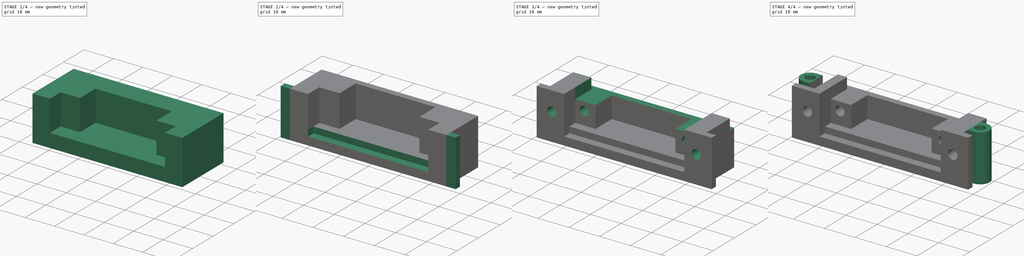
[diagram: build sequence overview — one tinted view per stage of 4, left to right]
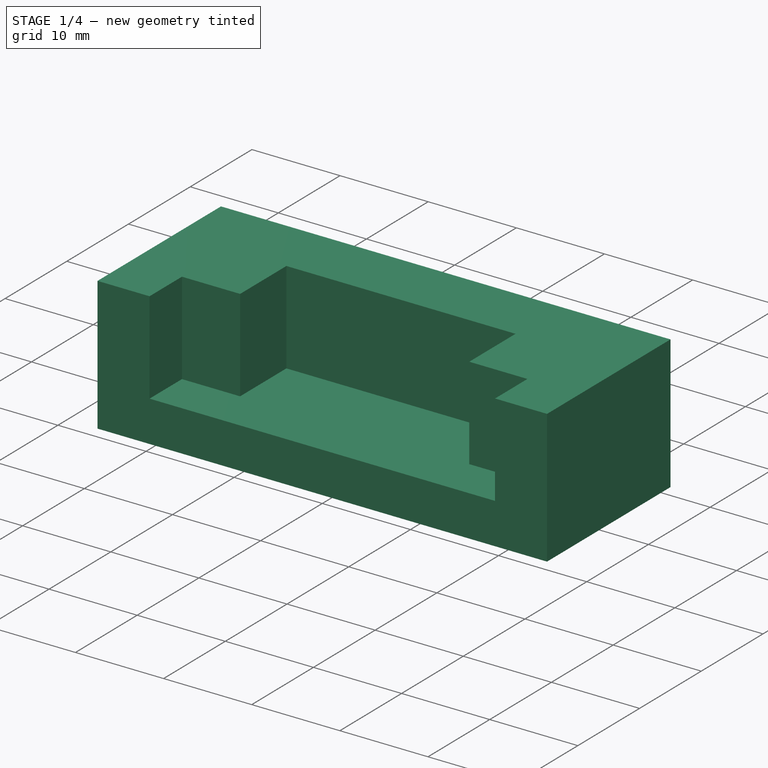
[diagram: stage 1 of 4 — iso view after this stage's code; geometry added in this stage tinted green]
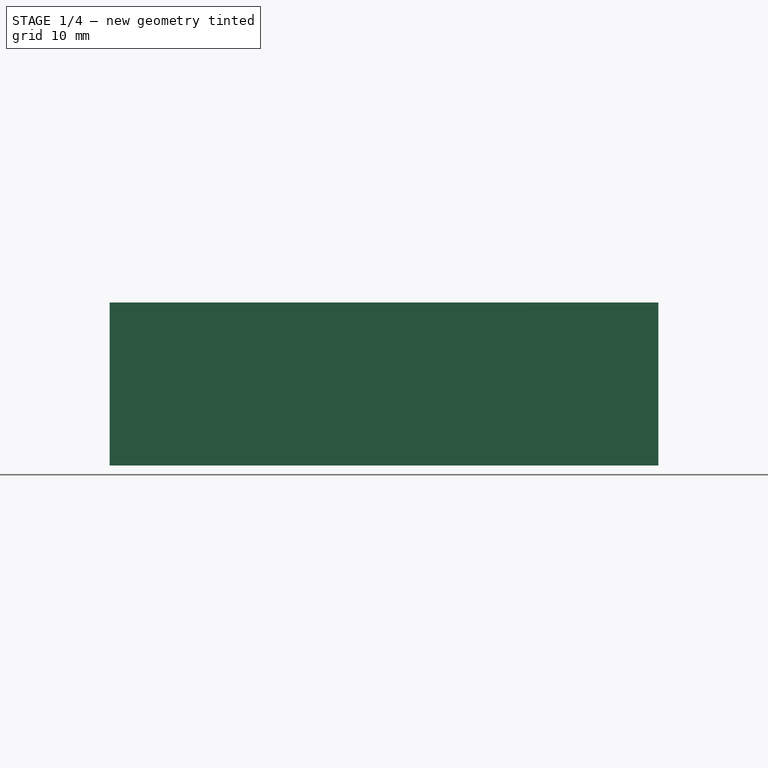
[diagram: stage 1 of 4 — front view after this stage's code; geometry added in this stage tinted green]
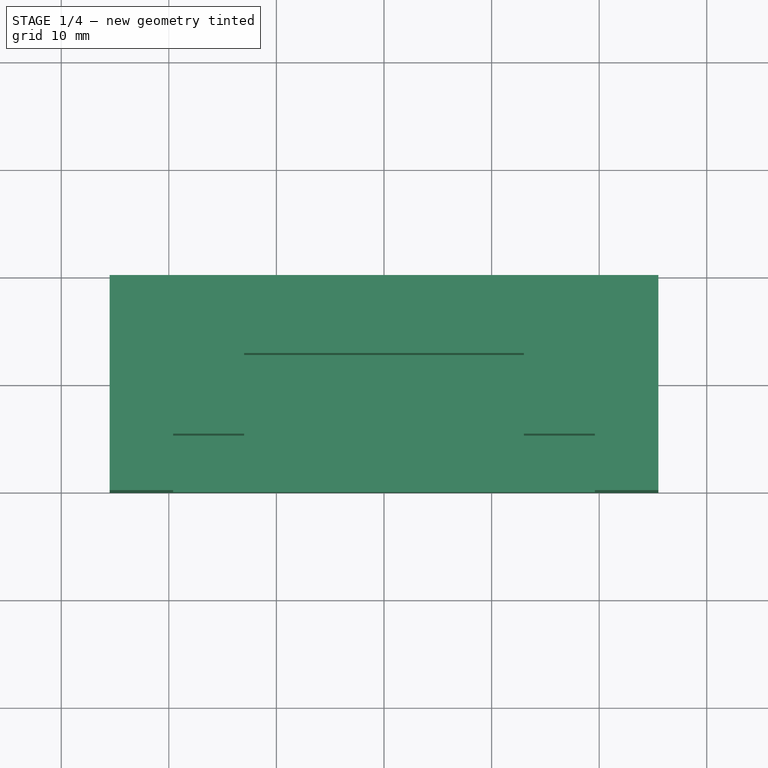
[diagram: stage 1 of 4 — top view after this stage's code; geometry added in this stage tinted green]
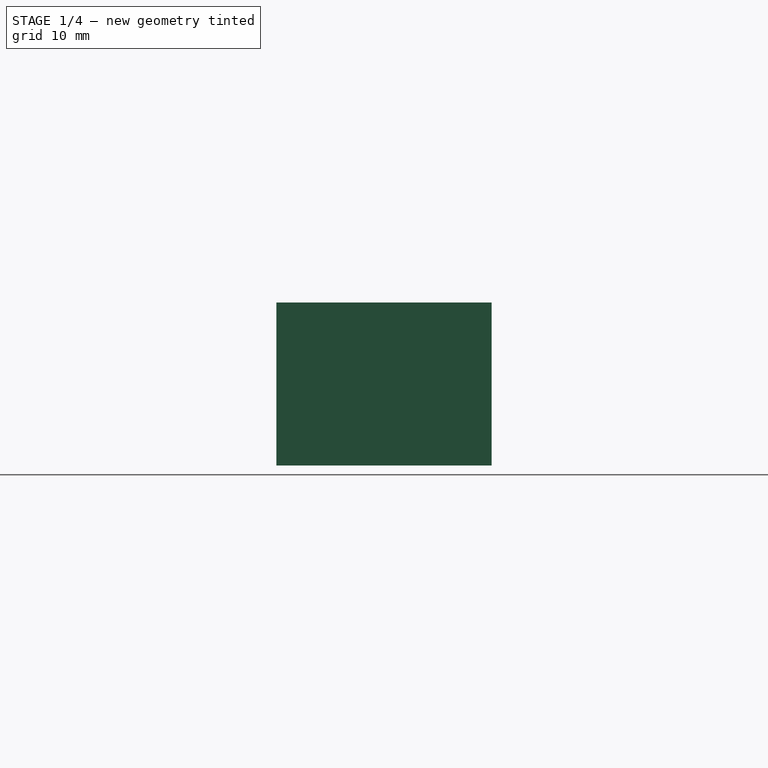
[diagram: stage 1 of 4 — right view after this stage's code; geometry added in this stage tinted green]
FCSTD DOCUMENT  (FreeCAD 0.21R33771 (Git))
Label: colorswitch-braket
License: All rights reserved
LicenseURL: http://en.wikipedia.org/wiki/All_rights_reserved
objects: Sketcher::SketchObject×10, PartDesign::Pocket×7, PartDesign::Pad×3, PartDesign::Body×2
note: 32 computed .brp shape members not serialized (recipe doc carries the construction recipe); baked Part::Feature solids carry a one-line shape summary decoded from their .brp

FEATURE [Sketcher::SketchObject] Sketch
  FullyConstrained = true
  MapMode = 5
  Support = -> [XY_Plane]
  sketch-geometry (4):
    g0: LineSegment StartX=-25.5 StartY=10 StartZ=0 EndX=25.5 EndY=10 EndZ=0
    g1: LineSegment StartX=25.5 StartY=10 StartZ=0 EndX=25.5 EndY=-10 EndZ=0
    g2: LineSegment StartX=25.5 StartY=-10 StartZ=0 EndX=-25.5 EndY=-10 EndZ=0
    g3: LineSegment StartX=-25.5 StartY=-10 StartZ=0 EndX=-25.5 EndY=10 EndZ=0
  constraints (11):
    c: Coincident(g0,g1)
    c: Coincident(g1,g2)
    c: Coincident(g2,g3)
    c: Coincident(g3,g0)
    c: Horizontal(g0)
    c: Horizontal(g2)
    c: Vertical(g1)
    c: Vertical(g3)
    c: Symmetric(g1,g0,g-1)
    c: DistanceX(g2,g2) = 51
    c: DistanceY(g3,g3) = 20
FEATURE [PartDesign::Pad] Pad
  Direction = (0,0,1)
  Length = 15.15
  Length2 = 10
  Profile = -> Sketch
  ReferenceAxis = -> Sketch [N_Axis]
  Type = 0
FEATURE [Sketcher::SketchObject] Sketch001
  ExternalGeometry = -> [Pad]
  FullyConstrained = true
  MapMode = 5
  Placement = pos=(0,0,15.15) rot=(0,0,1;0rad)
  Support = -> [Pad]
  sketch-geometry (8):
    g0: LineSegment StartX=-19.6 StartY=-10 StartZ=0 EndX=19.6 EndY=-10 EndZ=0
    g1: LineSegment StartX=19.6 StartY=-10 StartZ=0 EndX=19.6 EndY=-4.75 EndZ=0
    g2: LineSegment StartX=-19.6 StartY=-10 StartZ=0 EndX=-19.6 EndY=-4.75 EndZ=0
    g3: LineSegment StartX=19.6 StartY=-4.75 StartZ=0 EndX=13 EndY=-4.75 EndZ=0
    g4: LineSegment StartX=-19.6 StartY=-4.75 StartZ=0 EndX=-13 EndY=-4.75 EndZ=0
    g5: LineSegment StartX=13 StartY=-4.75 StartZ=0 EndX=13 EndY=2.75 EndZ=0
    g6: LineSegment StartX=13 StartY=2.75 StartZ=0 EndX=-13 EndY=2.75 EndZ=0
    g7: LineSegment StartX=-13 StartY=2.75 StartZ=0 EndX=-13 EndY=-4.75 EndZ=0
  constraints (22):
    c: PointOnObject(g0,g-5)
    c: Symmetric(g0,g0,g-2)
    c: Coincident(g1,g0)
    c: Vertical(g1)
    c: Coincident(g2,g0)
    c: Vertical(g2)
    c: Coincident(g3,g1)
    c: Coincident(g4,g2)
    c: Horizontal(g4)
    c: Coincident(g5,g3)
    c: Vertical(g5)
    c: Coincident(g6,g5)
    c: Coincident(g7,g6)
    c: Coincident(g7,g4)
    c: Vertical(g7)
    c: Horizontal(g3)
    c: Horizontal(g3,g4)
    c: DistanceX(g0,g0) = 39.2
    c: DistanceY(g0,g6) = 12.75
    c: DistanceX(g6,g6) = 26
    c: DistanceY(g1,g5) = 7.5
    c: Symmetric(g6,g5,g-2)
FEATURE [PartDesign::Pocket] Pocket
  BaseFeature = -> Pad
  Direction = (0,0,-1)
  Length = 10.5
  Length2 = 5
  Profile = -> Sketch001
  ReferenceAxis = -> Sketch001 [N_Axis]
  Type = 0
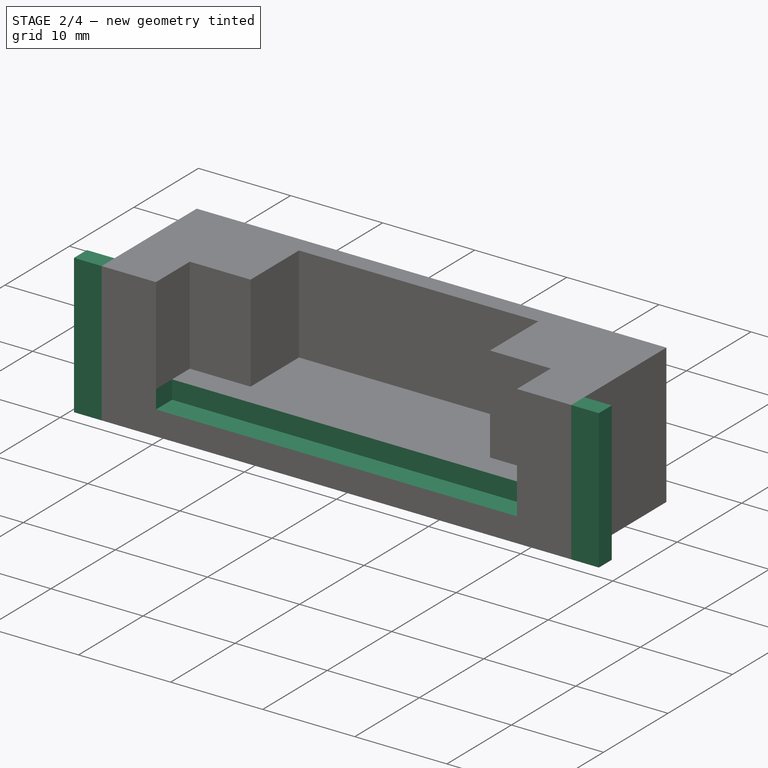
[diagram: stage 2 of 4 — iso view after this stage's code; geometry added in this stage tinted green]
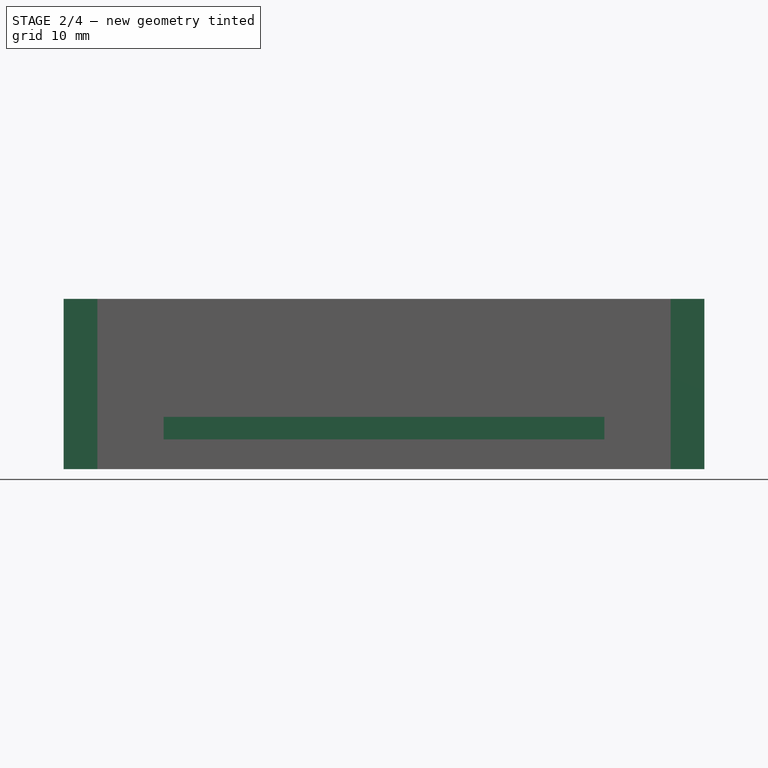
[diagram: stage 2 of 4 — front view after this stage's code; geometry added in this stage tinted green]
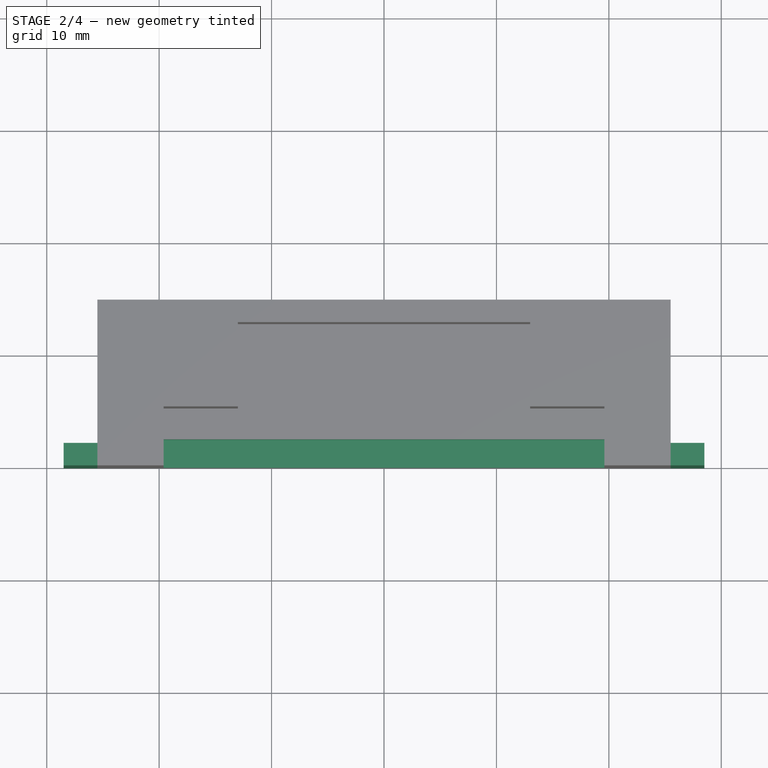
[diagram: stage 2 of 4 — top view after this stage's code; geometry added in this stage tinted green]
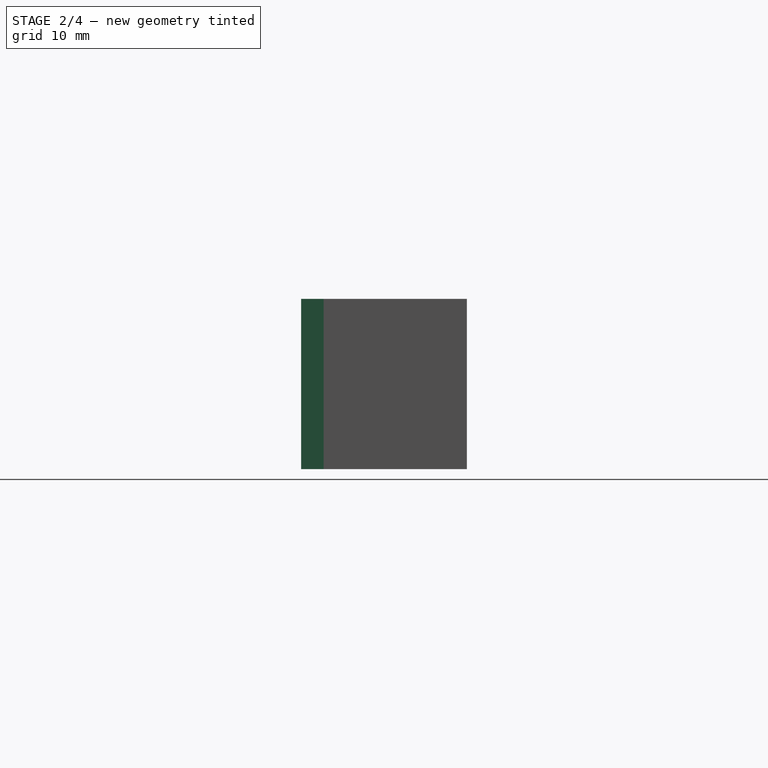
[diagram: stage 2 of 4 — right view after this stage's code; geometry added in this stage tinted green]
FEATURE [Sketcher::SketchObject] Sketch002
  ExternalGeometry = -> [Pocket]
  FullyConstrained = true
  MapMode = 5
  Placement = pos=(0,0,4.65) rot=(0,0,1;0rad)
  Support = -> [Pocket]
  sketch-geometry (4):
    g0: LineSegment StartX=-19.6 StartY=-7.5 StartZ=0 EndX=19.6 EndY=-7.5 EndZ=0
    g1: LineSegment StartX=19.6 StartY=-7.5 StartZ=0 EndX=19.6 EndY=-10 EndZ=0
    g2: LineSegment StartX=19.6 StartY=-10 StartZ=0 EndX=-19.6 EndY=-10 EndZ=0
    g3: LineSegment StartX=-19.6 StartY=-10 StartZ=0 EndX=-19.6 EndY=-7.5 EndZ=0
  constraints (11):
    c: Coincident(g0,g1)
    c: Coincident(g1,g2)
    c: Coincident(g2,g3)
    c: Coincident(g3,g0)
    c: Horizontal(g0)
    c: Horizontal(g2)
    c: Vertical(g1)
    c: Vertical(g3)
    c: PointOnObject(g0,g-3)
    c: Coincident(g1,g-4)
    c: DistanceY(g2,g0) = 2.5
FEATURE [PartDesign::Pocket] Pocket001
  BaseFeature = -> Pocket
  Direction = (0,0,-1)
  Length = 2
  Length2 = 5
  Profile = -> Sketch002
  ReferenceAxis = -> Sketch002 [N_Axis]
  Type = 0
FEATURE [PartDesign::Body] Body001
  Origin = -> Origin001
  Placement = pos=(0,0,-5.25) rot=(0,0,1;0rad)
FEATURE [Sketcher::SketchObject] Sketch011
  ExternalGeometry = -> [Pocket001]
  FullyConstrained = true
  MapMode = 5
  Placement = pos=(0,0,15.15) rot=(0,0,1;0rad)
  Support = -> [Pocket001]
  sketch-geometry (4):
    g0: LineSegment StartX=-25.5 StartY=10 StartZ=0 EndX=25.5 EndY=10 EndZ=0
    g1: LineSegment StartX=25.5 StartY=10 StartZ=0 EndX=25.5 EndY=4.75 EndZ=0
    g2: LineSegment StartX=25.5 StartY=4.75 StartZ=0 EndX=-25.5 EndY=4.75 EndZ=0
    g3: LineSegment StartX=-25.5 StartY=4.75 StartZ=0 EndX=-25.5 EndY=10 EndZ=0
  constraints (11):
    c: Coincident(g0,g1)
    c: Coincident(g1,g2)
    c: Coincident(g2,g3)
    c: Coincident(g3,g0)
    c: Horizontal(g0)
    c: Horizontal(g2)
    c: Vertical(g1)
    c: Vertical(g3)
    c: Coincident(g0,g-3)
    c: PointOnObject(g1,g-4)
    c: DistanceY(g-5,g2) = 2
FEATURE [PartDesign::Pocket] Pocket002
  BaseFeature = -> Pocket001
  Direction = (0,0,-1)
  Length = 5
  Length2 = 5
  Profile = -> Sketch011
  ReferenceAxis = -> Sketch011 [N_Axis]
  Type = 1
FEATURE [Sketcher::SketchObject] Sketch012
  ExternalGeometry = -> [Pocket002]
  FullyConstrained = false
  MapMode = 5
  Placement = pos=(0,-10,0) rot=(1,0,0;1.5708rad)
  Support = -> [Pocket002]
  sketch-geometry (12):
    g0: LineSegment StartX=-29.957 StartY=8.9 StartZ=0 EndX=29.4712 EndY=8.9 EndZ=0
    g1: Circle CenterX=-23.52 CenterY=8.9 CenterZ=0 NormalX=0 NormalY=0 NormalZ=1 AngleXU=0 Radius=1.5
    g2: Circle CenterX=23.52 CenterY=8.9 CenterZ=0 NormalX=0 NormalY=0 NormalZ=1 AngleXU=0 Radius=1.5
    g3: LineSegment StartX=-25.5 StartY=15.15 StartZ=0 EndX=-28.5 EndY=15.15 EndZ=0
    g4: LineSegment StartX=-28.5 StartY=15.15 StartZ=0 EndX=-28.5 EndY=0 EndZ=0
    g5: LineSegment StartX=-28.5 StartY=0 StartZ=0 EndX=-25.5 EndY=0 EndZ=0
    g6: LineSegment StartX=-25.5 StartY=0 StartZ=0 EndX=-25.5 EndY=15.15 EndZ=0
    g7: LineSegment StartX=25.5 StartY=0 StartZ=0 EndX=28.5 EndY=0 EndZ=0
    g8: LineSegment StartX=28.5 StartY=0 StartZ=0 EndX=28.5 EndY=15.15 EndZ=0
    g9: LineSegment StartX=28.5 StartY=15.15 StartZ=0 EndX=25.5 EndY=15.15 EndZ=0
    g10: LineSegment StartX=25.5 StartY=15.15 StartZ=0 EndX=25.5 EndY=0 EndZ=0
    g11: LineSegment StartX=-23.52 StartY=20.6079 StartZ=0 EndX=-23.52 EndY=-4.04788 EndZ=0
  constraints (28):
    c: Symmetric(g-4,g-3,g0)
    c: PointOnObject(g1,g0)
    c: Symmetric(g2,g1,g-2)
    c: DistanceX(g1,g2) = 47.04
    c: Diameter(g1) = 3
    c: Equal(g2,g1)
    c: Coincident(g3,g4)
    c: Coincident(g4,g5)
    c: Coincident(g5,g6)
    c: Coincident(g6,g3)
    c: Horizontal(g3)
    c: Horizontal(g5)
    c: Vertical(g4)
    c: Coincident(g3,g-5)
    c: Coincident(g7,g8)
    c: Coincident(g8,g9)
    c: Coincident(g9,g10)
    c: Coincident(g10,g7)
    c: Horizontal(g7)
    c: Horizontal(g9)
    c: Vertical(g8)
    c: Vertical(g10)
    c: Coincident(g7,g-6)
    c: Horizontal(g4,g7)
    c: Symmetric(g3,g8,g-2)
    c: PointOnObject(g1,g11)
    c: Vertical(g6)
    c: DistanceX(g3,g3) = 3
FEATURE [PartDesign::Pad] Pad005
  BaseFeature = -> Pocket002
  Direction = (0,-1,2e-16)
  Length = 2
  Length2 = 10
  Profile = -> Sketch012
  ReferenceAxis = -> Sketch012 [N_Axis]
  Reversed = true
  Type = 0
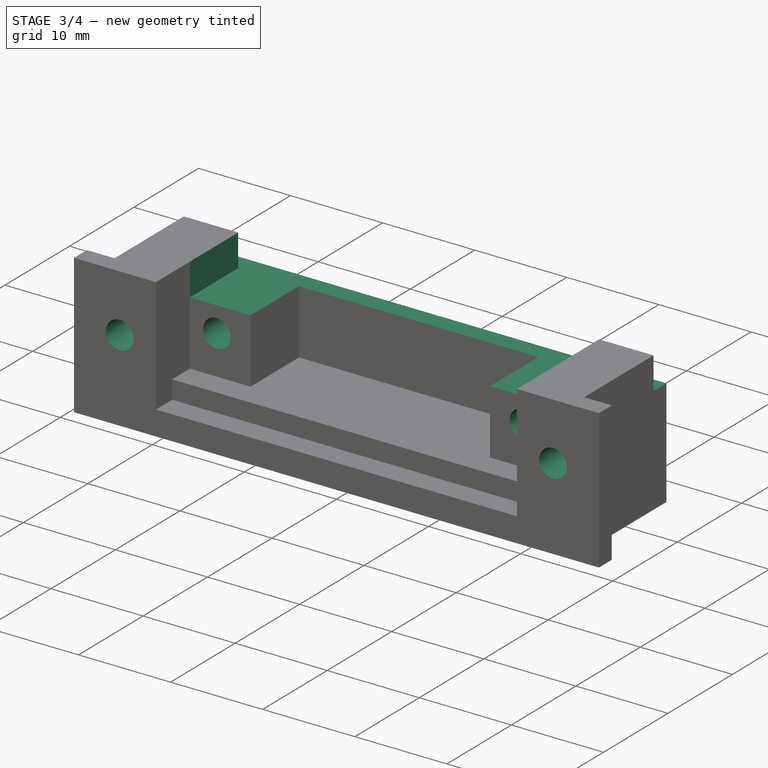
[diagram: stage 3 of 4 — iso view after this stage's code; geometry added in this stage tinted green]
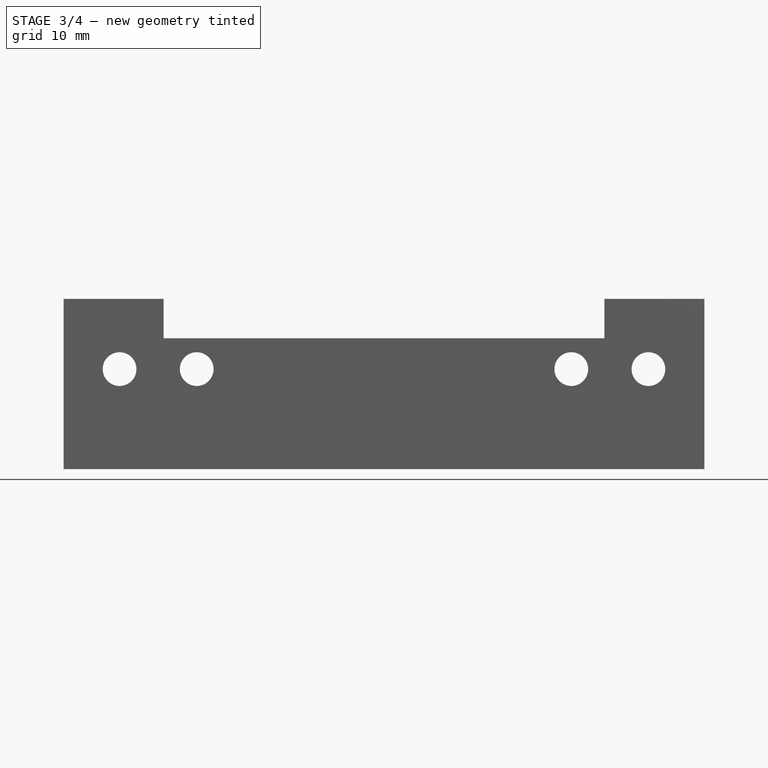
[diagram: stage 3 of 4 — front view after this stage's code; geometry added in this stage tinted green]
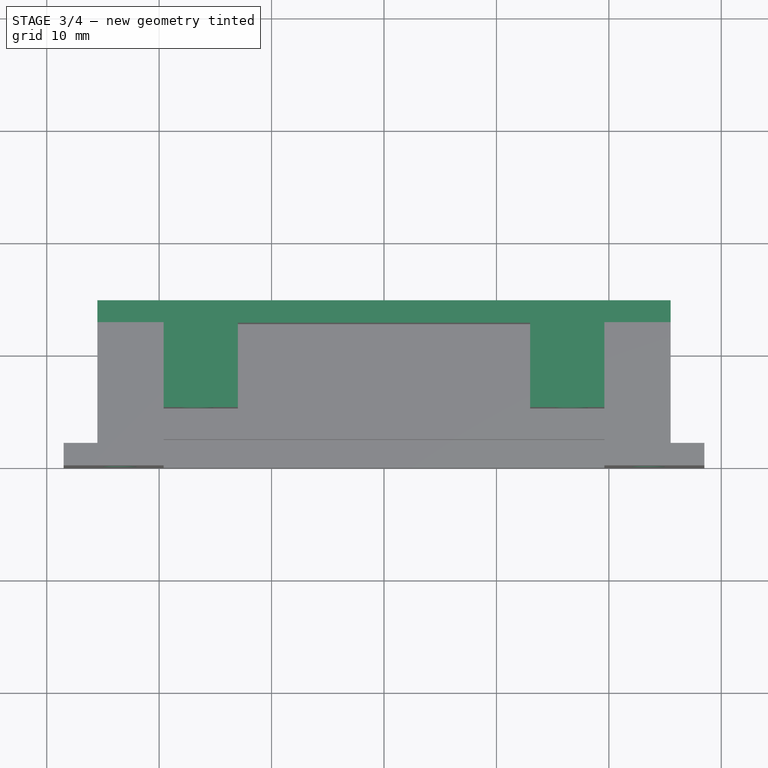
[diagram: stage 3 of 4 — top view after this stage's code; geometry added in this stage tinted green]
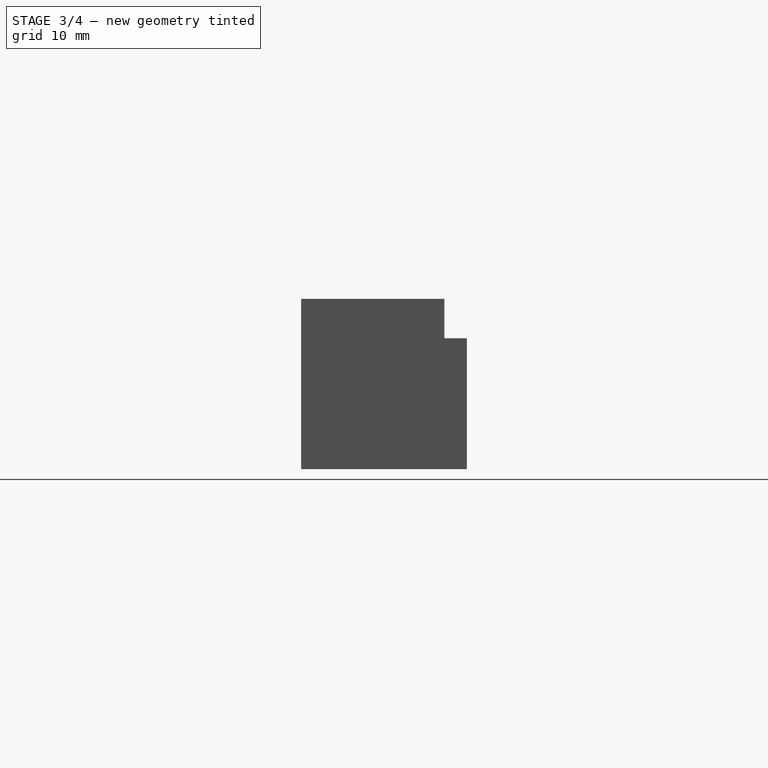
[diagram: stage 3 of 4 — right view after this stage's code; geometry added in this stage tinted green]
FEATURE [Sketcher::SketchObject] Sketch013
  ExternalGeometry = -> [Pad005]
  FullyConstrained = false
  MapMode = 5
  Placement = pos=(0,-10,0) rot=(1,0,0;1.5708rad)
  Support = -> [Pad005]
  sketch-geometry (5):
    g0: LineSegment StartX=-35.0547 StartY=8.9 StartZ=0 EndX=33.1925 EndY=8.9 EndZ=0
    g1: Circle CenterX=-23.52 CenterY=8.9 CenterZ=0 NormalX=0 NormalY=0 NormalZ=1 AngleXU=0 Radius=1.5
    g2: Circle CenterX=-16.66 CenterY=8.9 CenterZ=0 NormalX=0 NormalY=0 NormalZ=1 AngleXU=0 Radius=1.5
    g3: Circle CenterX=16.66 CenterY=8.9 CenterZ=0 NormalX=0 NormalY=0 NormalZ=1 AngleXU=0 Radius=1.5
    g4: Circle CenterX=23.52 CenterY=8.9 CenterZ=0 NormalX=0 NormalY=0 NormalZ=1 AngleXU=0 Radius=1.5
  constraints (11):
    c: PointOnObject(g1,g0)
    c: PointOnObject(g2,g0)
    c: Symmetric(g2,g3,g-2)
    c: DistanceX(g2,g3) = 33.32
    c: Symmetric(g1,g4,g-2)
    c: DistanceX(g1,g4) = 47.04
    c: Equal(g1,g4)
    c: Diameter(g1) = 3
    c: Equal(g2,g3)
    c: Diameter(g2) = 3
    c: Symmetric(g-5,g-6,g0)
FEATURE [PartDesign::Pocket] Pocket003
  BaseFeature = -> Pad005
  Direction = (0,1,-2e-16)
  Length = 5
  Length2 = 5
  Profile = -> Sketch013
  ReferenceAxis = -> Sketch013 [N_Axis]
  Type = 1
FEATURE [Sketcher::SketchObject] Sketch014
  ExternalGeometry = -> [Pocket003]
  FullyConstrained = true
  MapMode = 5
  Placement = pos=(0,-4.75,0) rot=(1,0,0;1.5708rad)
  Support = -> [Pocket003]
  sketch-geometry (4):
    g0: LineSegment StartX=19.6 StartY=11.65 StartZ=0 EndX=-19.6 EndY=11.65 EndZ=0
    g1: LineSegment StartX=-19.6 StartY=11.65 StartZ=0 EndX=-19.6 EndY=15.15 EndZ=0
    g2: LineSegment StartX=-19.6 StartY=15.15 StartZ=0 EndX=19.6 EndY=15.15 EndZ=0
    g3: LineSegment StartX=19.6 StartY=15.15 StartZ=0 EndX=19.6 EndY=11.65 EndZ=0
  constraints (11):
    c: Coincident(g0,g1)
    c: Coincident(g1,g2)
    c: Coincident(g2,g3)
    c: Coincident(g3,g0)
    c: Horizontal(g0)
    c: Horizontal(g2)
    c: Vertical(g1)
    c: Vertical(g3)
    c: PointOnObject(g0,g-5)
    c: Coincident(g1,g-8)
    c: DistanceY(g1,g1) = 3.5
FEATURE [PartDesign::Pocket] Pocket004
  BaseFeature = -> Pocket003
  Direction = (0,1,-2e-16)
  Length = 5
  Length2 = 5
  Profile = -> Sketch014
  ReferenceAxis = -> Sketch014 [N_Axis]
  Type = 2
FEATURE [Sketcher::SketchObject] Sketch015
  ExternalGeometry = -> [Pocket004]
  FullyConstrained = true
  MapMode = 5
  Placement = pos=(-25.5,0,0) rot=(0.57735,-0.57735,-0.57735;2.0944rad)
  Support = -> [Pocket004]
  sketch-geometry (4):
    g0: LineSegment StartX=-4.75 StartY=15.15 StartZ=0 EndX=-2.75 EndY=15.15 EndZ=0
    g1: LineSegment StartX=-2.75 StartY=15.15 StartZ=0 EndX=-2.75 EndY=11.65 EndZ=0
    g2: LineSegment StartX=-2.75 StartY=11.65 StartZ=0 EndX=-4.75 EndY=11.65 EndZ=0
    g3: LineSegment StartX=-4.75 StartY=11.65 StartZ=0 EndX=-4.75 EndY=15.15 EndZ=0
  constraints (9):
    c: Coincident(g0,g1)
    c: Coincident(g1,g2)
    c: Coincident(g2,g3)
    c: Coincident(g3,g0)
    c: Horizontal(g2)
    c: Vertical(g3)
    c: Coincident(g0,g-4)
    c: Coincident(g0,g-5)
    c: Coincident(g1,g-6)
FEATURE [PartDesign::Pocket] Pocket005
  BaseFeature = -> Pocket004
  Direction = (1,0,0)
  Length = 5
  Length2 = 5
  Profile = -> Sketch015
  ReferenceAxis = -> Sketch015 [N_Axis]
  Type = 1
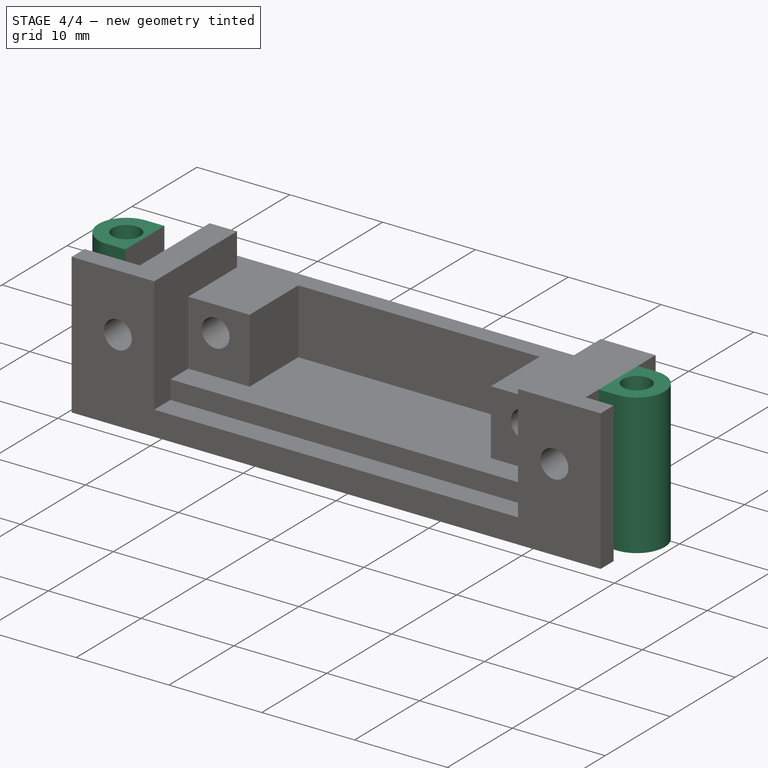
[diagram: stage 4 of 4 — iso view after this stage's code; geometry added in this stage tinted green]
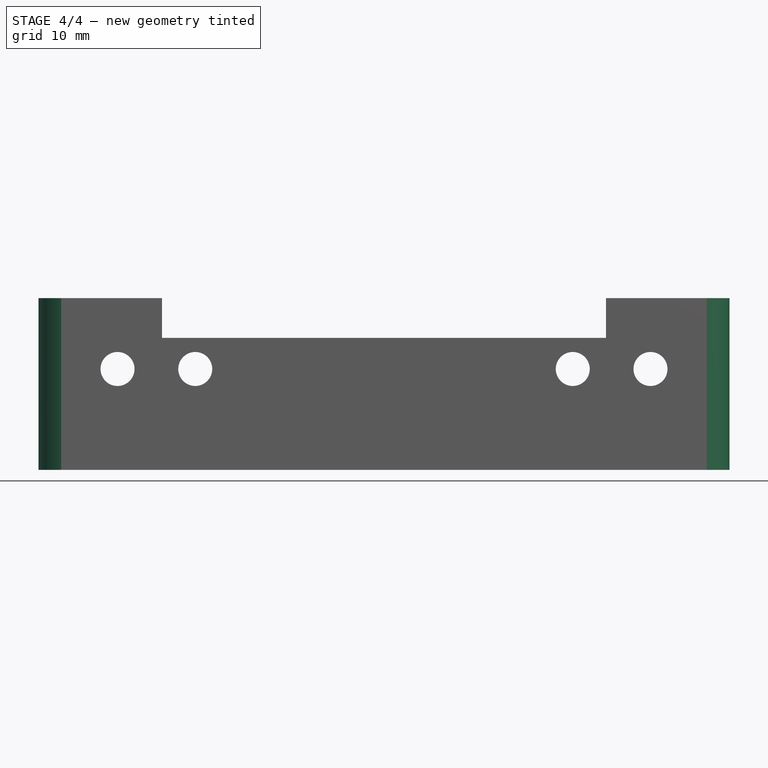
[diagram: stage 4 of 4 — front view after this stage's code; geometry added in this stage tinted green]
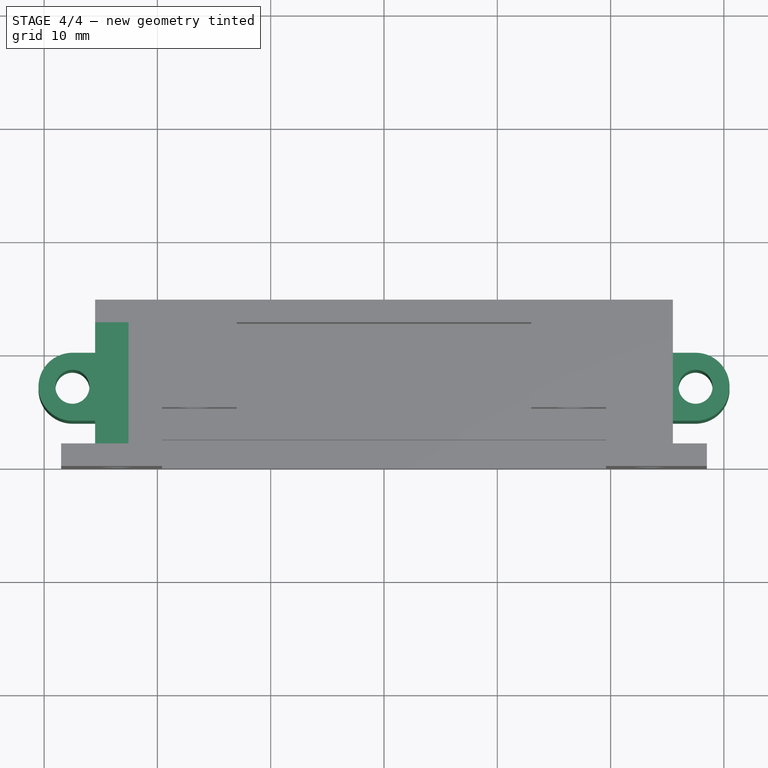
[diagram: stage 4 of 4 — top view after this stage's code; geometry added in this stage tinted green]
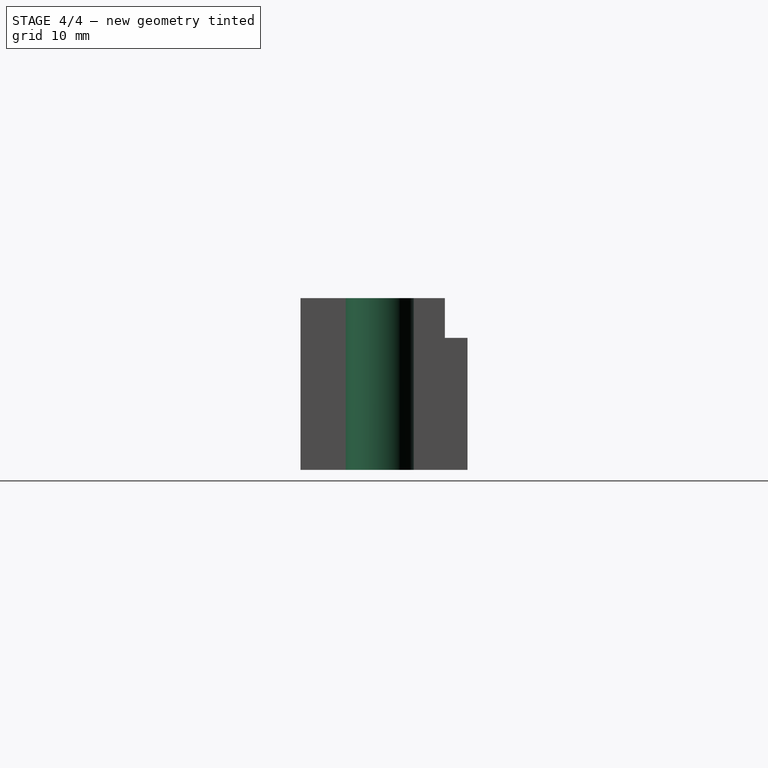
[diagram: stage 4 of 4 — right view after this stage's code; geometry added in this stage tinted green]
FEATURE [Sketcher::SketchObject] Sketch016
  ExternalGeometry = -> [Pocket005]
  FullyConstrained = true
  MapMode = 5
  Placement = pos=(0,2.75,7e-16) rot=(0,0.707107,0.707107;3.14159rad)
  Support = -> [Pocket005]
  sketch-geometry (4):
    g0: LineSegment StartX=25.5 StartY=15.15 StartZ=0 EndX=22.55 EndY=15.15 EndZ=0
    g1: LineSegment StartX=22.55 StartY=15.15 StartZ=0 EndX=22.55 EndY=11.65 EndZ=0
    g2: LineSegment StartX=22.55 StartY=11.65 StartZ=0 EndX=25.5 EndY=11.65 EndZ=0
    g3: LineSegment StartX=25.5 StartY=11.65 StartZ=0 EndX=25.5 EndY=15.15 EndZ=0
  constraints (10):
    c: Coincident(g0,g1)
    c: Coincident(g1,g2)
    c: Coincident(g2,g3)
    c: Coincident(g3,g0)
    c: Horizontal(g2)
    c: Vertical(g1)
    c: Vertical(g3)
    c: Coincident(g0,g-4)
    c: PointOnObject(g1,g-5)
    c: Symmetric(g0,g-4,g0)
FEATURE [PartDesign::Pocket] Pocket006
  BaseFeature = -> Pocket005
  Direction = (0,-1,-2e-16)
  Length = 0
  Length2 = 5
  Profile = -> Sketch016
  ReferenceAxis = -> Sketch016 [N_Axis]
  Type = 3
  UpToFace = -> Pocket005 [Face7]
FEATURE [Sketcher::SketchObject] Sketch017
  ExternalGeometry = -> [Pocket006]
  FullyConstrained = true
  MapMode = 5
  Placement = pos=(0,0,15.15) rot=(0,0,1;0rad)
  Support = -> [Pocket006]
  sketch-geometry (10):
    g0: LineSegment StartX=-25.5 StartY=0 StartZ=0 EndX=-25.5 EndY=-6 EndZ=0
    g1: ArcOfCircle CenterX=-27.5 CenterY=-3 CenterZ=0 NormalX=0 NormalY=0 NormalZ=1 AngleXU=0 Radius=3 StartAngle=1.5708 EndAngle=4.71239
    g2: LineSegment StartX=-27.5 StartY=-6 StartZ=0 EndX=-25.5 EndY=-6 EndZ=0
    g3: LineSegment StartX=-27.5 StartY=0 StartZ=0 EndX=-25.5 EndY=0 EndZ=0
    g4: Circle CenterX=-27.5 CenterY=-3 CenterZ=0 NormalX=0 NormalY=0 NormalZ=1 AngleXU=0 Radius=1.5
    g5: Circle CenterX=27.5 CenterY=-3 CenterZ=0 NormalX=0 NormalY=0 NormalZ=1 AngleXU=0 Radius=1.5
    g6: LineSegment StartX=25.5 StartY=0 StartZ=0 EndX=25.5 EndY=-6 EndZ=0
    g7: LineSegment StartX=25.5 StartY=-6 StartZ=0 EndX=27.5 EndY=-6 EndZ=0
    g8: LineSegment StartX=25.5 StartY=0 StartZ=0 EndX=27.5 EndY=0 EndZ=0
    g9: ArcOfCircle CenterX=27.5 CenterY=-3 CenterZ=0 NormalX=0 NormalY=0 NormalZ=1 AngleXU=0 Radius=3 StartAngle=4.71239 EndAngle=7.85398
  constraints (29):
    c: PointOnObject(g0,g-3)
    c: PointOnObject(g0,g-3)
    c: Coincident(g2,g1)
    c: Coincident(g2,g0)
    c: Coincident(g3,g1)
    c: Coincident(g3,g0)
    c: Parallel(g3,g-1)
    c: Horizontal(g2)
    c: Vertical(g1,g1)
    c: Vertical(g1,g1)
    c: Diameter(g1) = 6
    c: PointOnObject(g0,g-1)
    c: DistanceX(g2,g2) = 2
    c: Coincident(g4,g1)
    c: Diameter(g4) = 3
    c: PointOnObject(g6,g-4)
    c: PointOnObject(g6,g-4)
    c: Coincident(g7,g6)
    c: Coincident(g8,g6)
    c: Coincident(g9,g5)
    c: Coincident(g9,g8)
    c: Coincident(g9,g7)
    c: Equal(g5,g4)
    c: Symmetric(g1,g5,g-2)
    c: Horizontal(g7)
    c: Horizontal(g8)
    c: Vertical(g5,g8)
    c: Vertical(g8,g7)
    c: Equal(g1,g9)
FEATURE [PartDesign::Pad] Pad006
  BaseFeature = -> Pocket006
  Direction = (0,0,1)
  Length = 10
  Length2 = 10
  Profile = -> Sketch017
  ReferenceAxis = -> Sketch017 [N_Axis]
  Reversed = true
  Type = 3
  UpToFace = -> Pocket006 [Face2]
FEATURE [PartDesign::Body] Body
  Group = -> [Sketch,Pad,Sketch001,Pocket,Sketch002,Pocket001,Sketch011,Pocket002,Sketch012,Pad005,Sketch013,Pocket003,Sketch014,Pocket004,Sketch015,Pocket005,Sketch016,Pocket006,Sketch017,Pad006]
  Origin = -> Origin
  Tip = -> Pad006
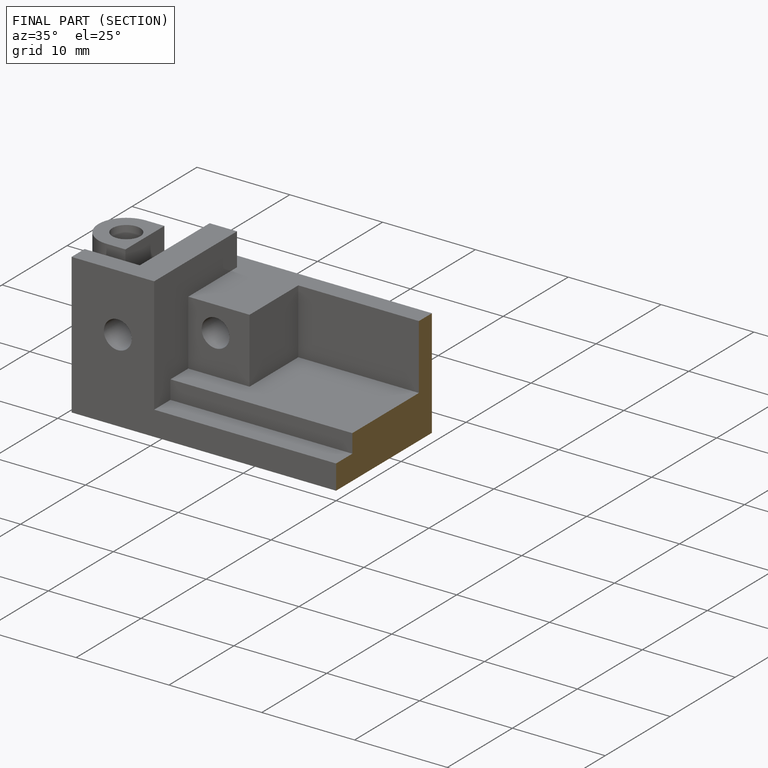
[diagram: finished part — half-section view (interior)]
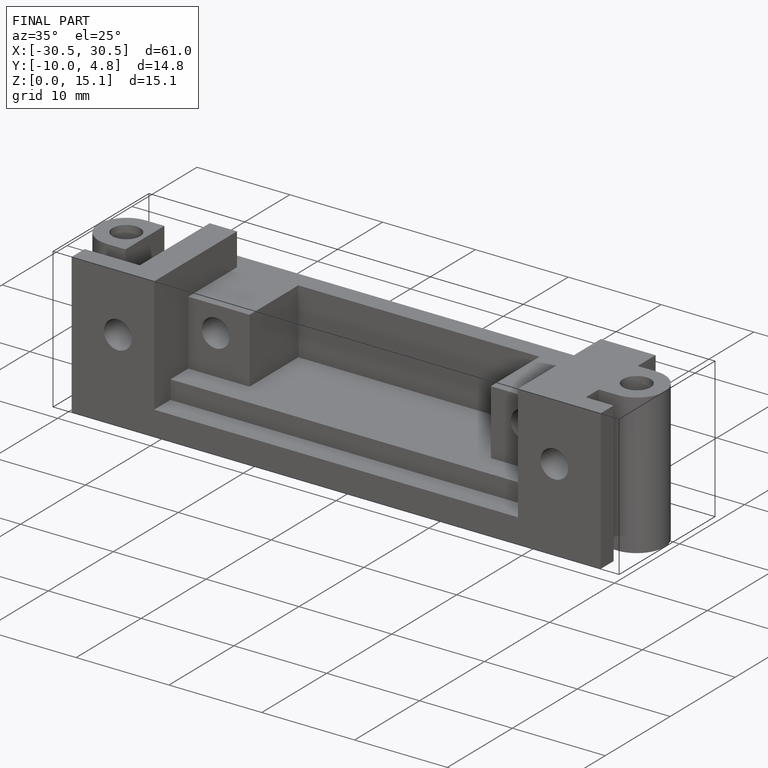
[diagram: finished part — iso view with bounding-box wireframe]
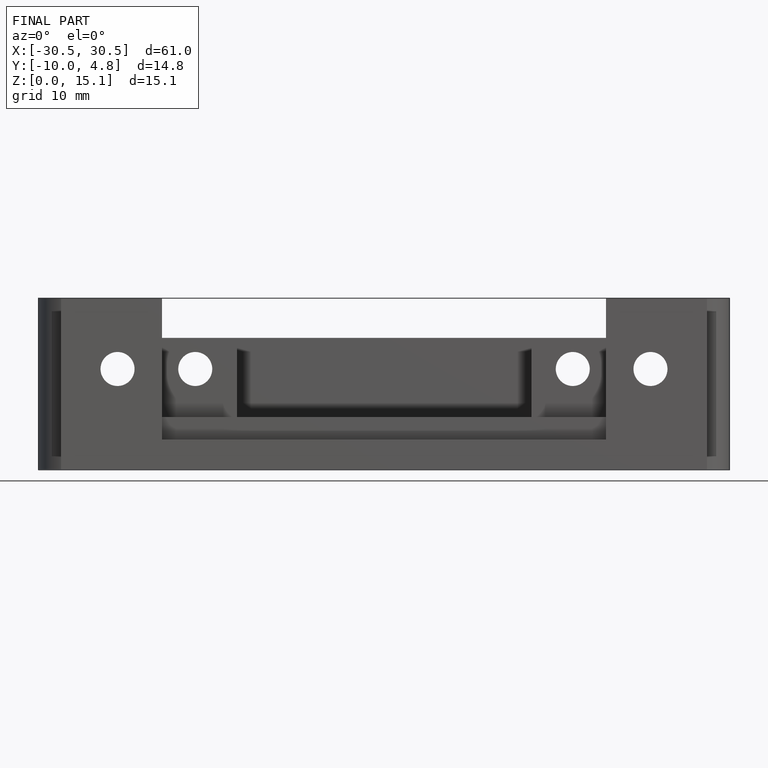
[diagram: finished part — front view with bounding-box wireframe]
